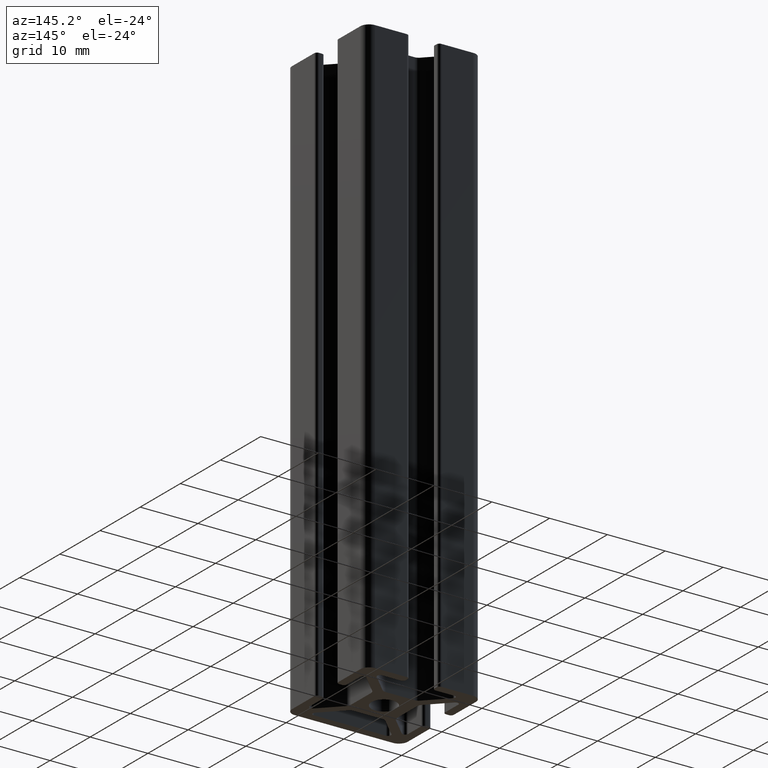
[diagram: clean part render]
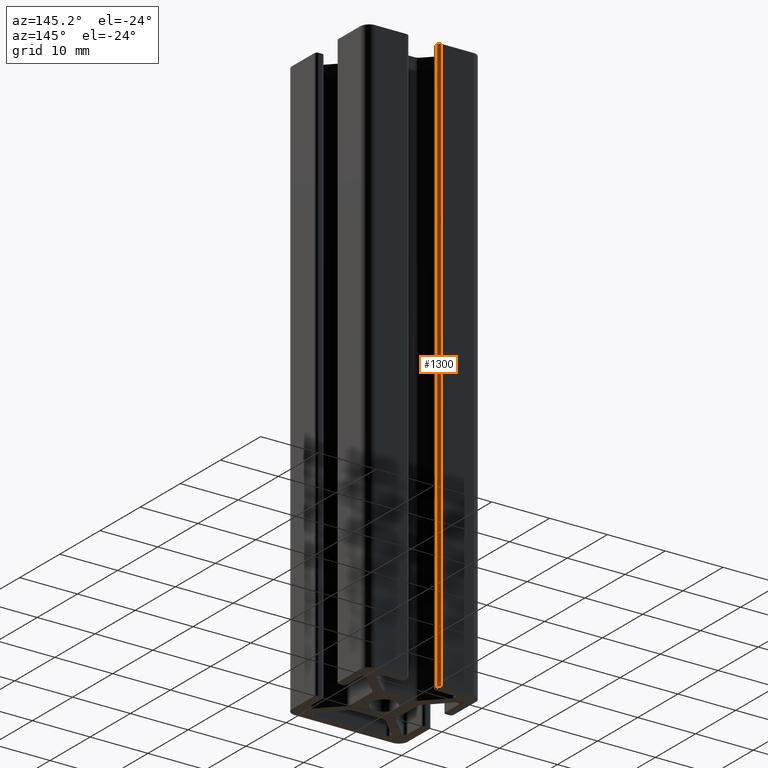
[diagram: same view with one face highlighted and labeled with its STEP entity id]
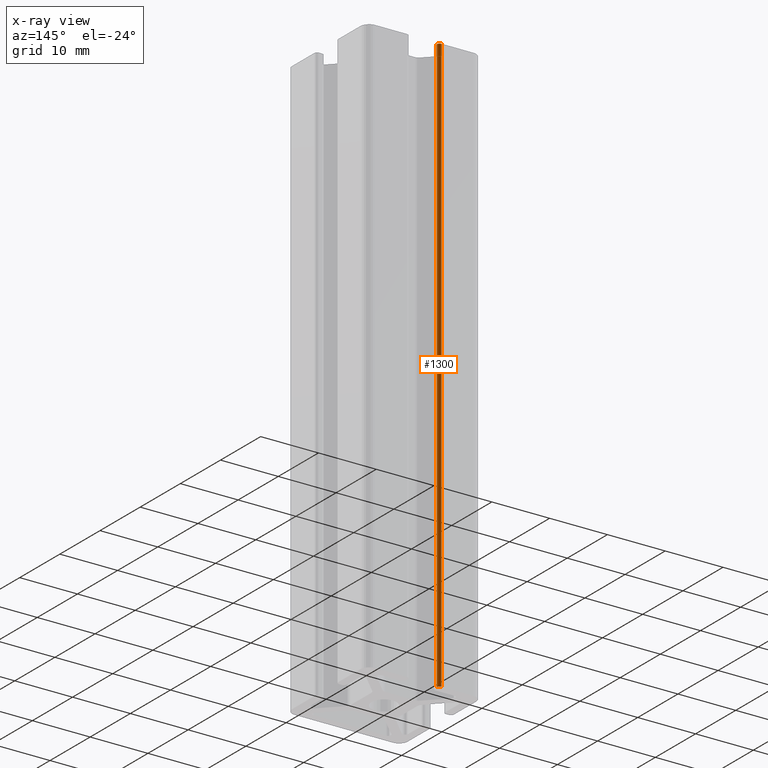
[diagram: x-ray of the same camera — body ghosted, the highlighted face saturated]
A machine part, auxiliary view. The second image highlights one B-rep face of the part: STEP entity #1300.
The next image is the same camera in x-ray: the body ghosted, the highlighted face saturated — about 0% of this face is hidden behind the body in this view.
In plain terms, the highlighted cylindrical surface (edge-blend (fillet) strip) has radius 0.5 mm, axis along (0, 0, 1).
Its self-contained STEP definition (entity closure, byte-faithful):
#127=LINE('',#2112,#255);
#128=LINE('',#2115,#256);
#255=VECTOR('',#1714,100.);
#256=VECTOR('',#1717,100.);
#350=FACE_OUTER_BOUND('',#418,.T.);
#418=EDGE_LOOP('',(#997,#998,#999,#1000));
#493=CIRCLE('',#1414,0.5);
#494=CIRCLE('',#1415,0.5);
#601=VERTEX_POINT('',#2108);
#602=VERTEX_POINT('',#2109);
#603=VERTEX_POINT('',#2111);
#604=VERTEX_POINT('',#2113);
#767=EDGE_CURVE('',#601,#602,#493,.T.);
#768=EDGE_CURVE('',#603,#601,#127,.T.);
#769=EDGE_CURVE('',#604,#603,#494,.T.);
#770=EDGE_CURVE('',#602,#604,#128,.T.);
#997=ORIENTED_EDGE('',*,*,#767,.F.);
#998=ORIENTED_EDGE('',*,*,#768,.F.);
#999=ORIENTED_EDGE('',*,*,#769,.F.);
#1000=ORIENTED_EDGE('',*,*,#770,.F.);
#1249=CYLINDRICAL_SURFACE('',#1413,0.5);
#1300=ADVANCED_FACE('',(#350),#1249,.T.);
#1413=AXIS2_PLACEMENT_3D('',#2107,#1710,#1711);
#1414=AXIS2_PLACEMENT_3D('',#2110,#1712,#1713);
#1415=AXIS2_PLACEMENT_3D('',#2114,#1715,#1716);
#1710=DIRECTION('center_axis',(0.,0.,1.));
#1711=DIRECTION('ref_axis',(-1.,8.8817841970014E-15,0.));
#1712=DIRECTION('center_axis',(0.,0.,1.));
#1713=DIRECTION('ref_axis',(-1.,8.8817841970014E-15,0.));
#1714=DIRECTION('',(0.,0.,1.));
#1715=DIRECTION('center_axis',(0.,0.,-1.));
#1716=DIRECTION('ref_axis',(-1.,8.8817841970014E-15,0.));
#1717=DIRECTION('',(0.,0.,-1.));
#2107=CARTESIAN_POINT('Origin',(-3.,9.49999999999999,0.));
#2108=CARTESIAN_POINT('',(-2.5,9.49999999999999,100.));
#2109=CARTESIAN_POINT('',(-2.99999999999999,9.99999999999999,100.));
#2110=CARTESIAN_POINT('Origin',(-3.,9.49999999999999,100.));
#2111=CARTESIAN_POINT('',(-2.5,9.49999999999999,0.));
#2112=CARTESIAN_POINT('',(-2.5,9.49999999999999,0.));
#2113=CARTESIAN_POINT('',(-2.99999999999999,9.99999999999999,0.));
#2114=CARTESIAN_POINT('Origin',(-3.,9.49999999999999,0.));
#2115=CARTESIAN_POINT('',(-3.,10.,0.));